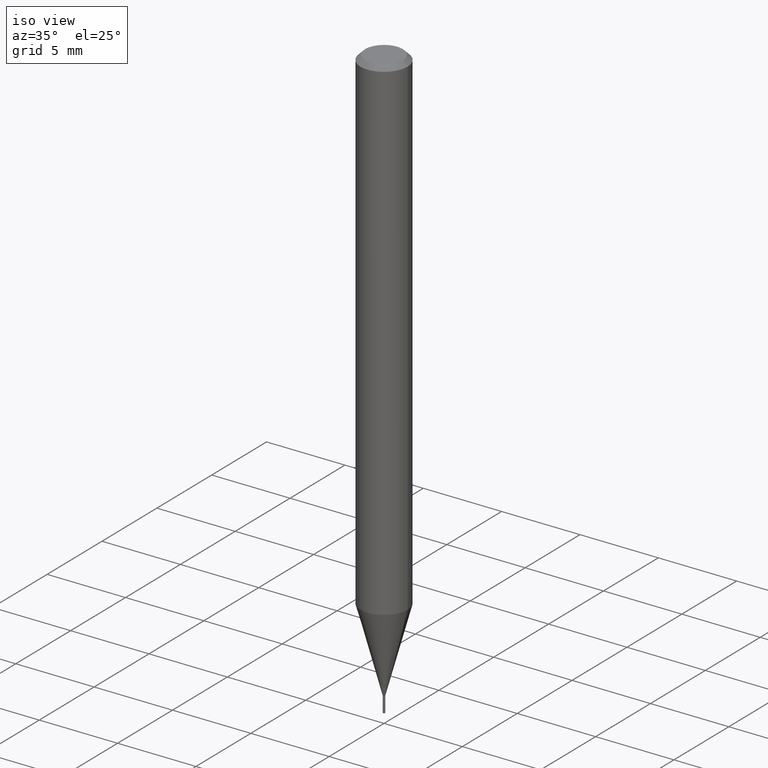
[diagram: clean part render]
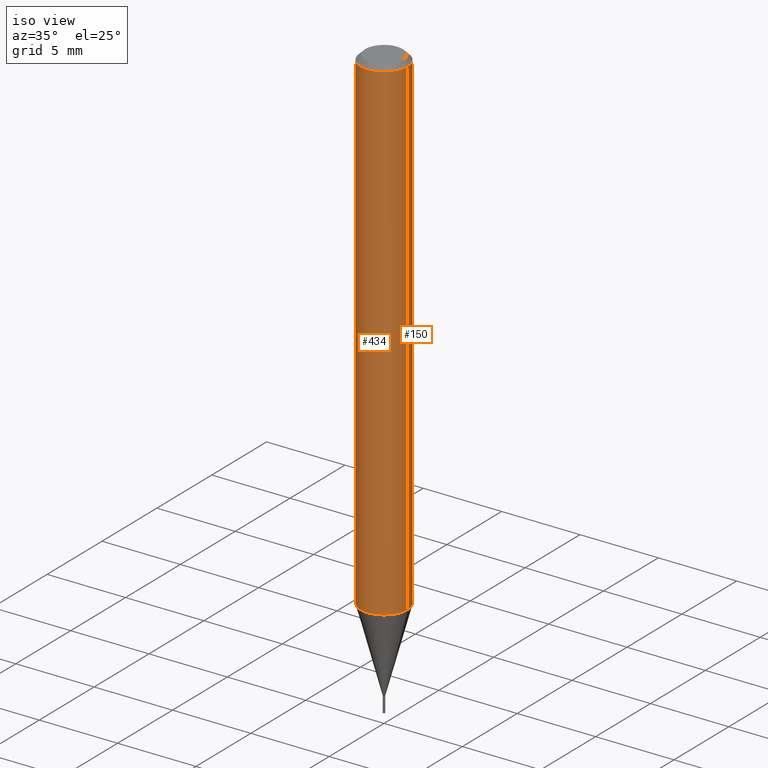
[diagram: same view with one multi-face feature highlighted, each face labeled with its STEP entity id]
A machine part, iso view. The highlighted faces form ONE feature: a constant-radius fillet chain: 2 tangent blend faces with common blend radius 1.4999 mm. The faces share edges in the B-rep.
Their STEP definitions:
[1] entity #434 (Cylinder):
#24 = AXIS2_PLACEMENT_3D ( 'NONE', #226, #343, #374 ) ;
#35 = AXIS2_PLACEMENT_3D ( 'NONE', #315, #122, #283 ) ;
#36 = VERTEX_POINT ( 'NONE', #414 ) ;
#44 = VECTOR ( 'NONE', #399, 39.37007874015748143 ) ;
#70 = EDGE_CURVE ( 'NONE', #71, #151, #424, .T. ) ;
#71 = VERTEX_POINT ( 'NONE', #237 ) ;
#77 = ORIENTED_EDGE ( 'NONE', *, *, #410, .F. ) ;
#100 = CARTESIAN_POINT ( 'NONE',  ( 0.05905000000000015098, -4.759374832450481016E-15, -1.245039129372358166 ) ) ;
#122 = DIRECTION ( 'NONE',  ( -2.445468806185136597E-29, 3.491481338843145583E-15, 1.000000000000000000 ) ) ;
#124 = CARTESIAN_POINT ( 'NONE',  ( -0.05904999999999999832, -1.774557155006081039E-15, -0.01181000000000007218 ) ) ;
#129 = ORIENTED_EDGE ( 'NONE', *, *, #355, .T. ) ;
#151 = VERTEX_POINT ( 'NONE', #100 ) ;
#171 = CARTESIAN_POINT ( 'NONE',  ( -0.05905000000000007465, 4.195754854663396902E-16, -2.904631170795525395E-30 ) ) ;
#204 = LINE ( 'NONE', #171, #44 ) ;
#226 = CARTESIAN_POINT ( 'NONE',  ( 3.044704353360002545E-29, -4.347030886333105307E-15, -1.245039129372358166 ) ) ;
#237 = CARTESIAN_POINT ( 'NONE',  ( -0.05905000000000015098, -3.927455400866765814E-15, -1.245039129372358166 ) ) ;
#240 = CYLINDRICAL_SURFACE ( 'NONE', #328, 0.05905000000000007465 ) ;
#282 = ORIENTED_EDGE ( 'NONE', *, *, #70, .T. ) ;
#283 = DIRECTION ( 'NONE',  ( 1.000000000000000000, -6.982962677686266711E-15, 0.000000000000000000 ) ) ;
#291 = DIRECTION ( 'NONE',  ( -2.445468806185136597E-29, 3.491481338843145583E-15, 1.000000000000000000 ) ) ;
#315 = CARTESIAN_POINT ( 'NONE',  ( 2.888098660104664204E-31, -4.123439461173780263E-17, -0.01181000000000007218 ) ) ;
#327 = FACE_OUTER_BOUND ( 'NONE', #364, .T. ) ;
#328 = AXIS2_PLACEMENT_3D ( 'NONE', #389, #291, #356 ) ;
#330 = DIRECTION ( 'NONE',  ( -2.445468806185136877E-29, 3.491481338843145188E-15, 1.000000000000000000 ) ) ;
#336 = CIRCLE ( 'NONE', #35, 0.05904999999999999832 ) ;
#343 = DIRECTION ( 'NONE',  ( -2.445468806185136597E-29, 3.491481338843145583E-15, 1.000000000000000000 ) ) ;
#353 = CARTESIAN_POINT ( 'NONE',  ( 0.05905000000000007465, -4.123439461173745750E-16, 2.879382386107504074E-30 ) ) ;
#355 = EDGE_CURVE ( 'NONE', #151, #36, #464, .T. ) ;
#356 = DIRECTION ( 'NONE',  ( 1.000000000000000000, -6.982962677686266711E-15, 4.876176775795936353E-29 ) ) ;
#364 = EDGE_LOOP ( 'NONE', ( #77, #282, #129, #455 ) ) ;
#374 = DIRECTION ( 'NONE',  ( 1.000000000000000000, -6.982962677686271444E-15, 0.000000000000000000 ) ) ;
#389 = CARTESIAN_POINT ( 'NONE',  ( 0.000000000000000000, 0.000000000000000000, 0.000000000000000000 ) ) ;
#399 = DIRECTION ( 'NONE',  ( -2.445468806185136877E-29, 3.491481338843145188E-15, 1.000000000000000000 ) ) ;
#410 = EDGE_CURVE ( 'NONE', #71, #483, #204, .T. ) ;
#414 = CARTESIAN_POINT ( 'NONE',  ( 0.05904999999999999832, -4.535783407291118600E-16, -0.01181000000000007218 ) ) ;
#417 = EDGE_CURVE ( 'NONE', #483, #36, #336, .T. ) ;
#424 = CIRCLE ( 'NONE', #24, 0.05905000000000015098 ) ;
#434 = ADVANCED_FACE ( 'NONE', ( #327 ), #240, .T. ) ;
#455 = ORIENTED_EDGE ( 'NONE', *, *, #417, .F. ) ;
#464 = LINE ( 'NONE', #353, #477 ) ;
#477 = VECTOR ( 'NONE', #330, 39.37007874015748143 ) ;
#483 = VERTEX_POINT ( 'NONE', #124 ) ;
[2] entity #150 (Cylinder):
#36 = VERTEX_POINT ( 'NONE', #414 ) ;
#44 = VECTOR ( 'NONE', #399, 39.37007874015748143 ) ;
#52 = ORIENTED_EDGE ( 'NONE', *, *, #355, .F. ) ;
#71 = VERTEX_POINT ( 'NONE', #237 ) ;
#100 = CARTESIAN_POINT ( 'NONE',  ( 0.05905000000000015098, -4.759374832450481016E-15, -1.245039129372358166 ) ) ;
#124 = CARTESIAN_POINT ( 'NONE',  ( -0.05904999999999999832, -1.774557155006081039E-15, -0.01181000000000007218 ) ) ;
#128 = AXIS2_PLACEMENT_3D ( 'NONE', #385, #459, #285 ) ;
#147 = EDGE_LOOP ( 'NONE', ( #154, #169, #458, #52 ) ) ;
#150 = ADVANCED_FACE ( 'NONE', ( #326 ), #429, .T. ) ;
#151 = VERTEX_POINT ( 'NONE', #100 ) ;
#152 = EDGE_CURVE ( 'NONE', #151, #71, #192, .T. ) ;
#154 = ORIENTED_EDGE ( 'NONE', *, *, #152, .T. ) ;
#169 = ORIENTED_EDGE ( 'NONE', *, *, #410, .T. ) ;
#171 = CARTESIAN_POINT ( 'NONE',  ( -0.05905000000000007465, 4.195754854663396902E-16, -2.904631170795525395E-30 ) ) ;
#184 = DIRECTION ( 'NONE',  ( 1.000000000000000000, -6.982962677686271444E-15, 0.000000000000000000 ) ) ;
#189 = DIRECTION ( 'NONE',  ( -2.445468806185136597E-29, 3.491481338843145583E-15, 1.000000000000000000 ) ) ;
#192 = CIRCLE ( 'NONE', #221, 0.05905000000000015098 ) ;
#204 = LINE ( 'NONE', #171, #44 ) ;
#217 = EDGE_CURVE ( 'NONE', #36, #483, #303, .T. ) ;
#221 = AXIS2_PLACEMENT_3D ( 'NONE', #440, #189, #184 ) ;
#237 = CARTESIAN_POINT ( 'NONE',  ( -0.05905000000000015098, -3.927455400866765814E-15, -1.245039129372358166 ) ) ;
#251 = CARTESIAN_POINT ( 'NONE',  ( 0.000000000000000000, 0.000000000000000000, 0.000000000000000000 ) ) ;
#256 = DIRECTION ( 'NONE',  ( -2.445468806185136597E-29, 3.491481338843145583E-15, 1.000000000000000000 ) ) ;
#285 = DIRECTION ( 'NONE',  ( 1.000000000000000000, -6.982962677686266711E-15, 0.000000000000000000 ) ) ;
#294 = DIRECTION ( 'NONE',  ( 1.000000000000000000, -6.982962677686266711E-15, 4.876176775795936353E-29 ) ) ;
#303 = CIRCLE ( 'NONE', #128, 0.05904999999999999832 ) ;
#326 = FACE_OUTER_BOUND ( 'NONE', #147, .T. ) ;
#330 = DIRECTION ( 'NONE',  ( -2.445468806185136877E-29, 3.491481338843145188E-15, 1.000000000000000000 ) ) ;
#348 = AXIS2_PLACEMENT_3D ( 'NONE', #251, #256, #294 ) ;
#353 = CARTESIAN_POINT ( 'NONE',  ( 0.05905000000000007465, -4.123439461173745750E-16, 2.879382386107504074E-30 ) ) ;
#355 = EDGE_CURVE ( 'NONE', #151, #36, #464, .T. ) ;
#385 = CARTESIAN_POINT ( 'NONE',  ( 2.888098660104664204E-31, -4.123439461173780263E-17, -0.01181000000000007218 ) ) ;
#399 = DIRECTION ( 'NONE',  ( -2.445468806185136877E-29, 3.491481338843145188E-15, 1.000000000000000000 ) ) ;
#410 = EDGE_CURVE ( 'NONE', #71, #483, #204, .T. ) ;
#414 = CARTESIAN_POINT ( 'NONE',  ( 0.05904999999999999832, -4.535783407291118600E-16, -0.01181000000000007218 ) ) ;
#429 = CYLINDRICAL_SURFACE ( 'NONE', #348, 0.05905000000000007465 ) ;
#440 = CARTESIAN_POINT ( 'NONE',  ( 3.044704353360002545E-29, -4.347030886333105307E-15, -1.245039129372358166 ) ) ;
#458 = ORIENTED_EDGE ( 'NONE', *, *, #217, .F. ) ;
#459 = DIRECTION ( 'NONE',  ( -2.445468806185136597E-29, 3.491481338843145583E-15, 1.000000000000000000 ) ) ;
#464 = LINE ( 'NONE', #353, #477 ) ;
#477 = VECTOR ( 'NONE', #330, 39.37007874015748143 ) ;
#483 = VERTEX_POINT ( 'NONE', #124 ) ;